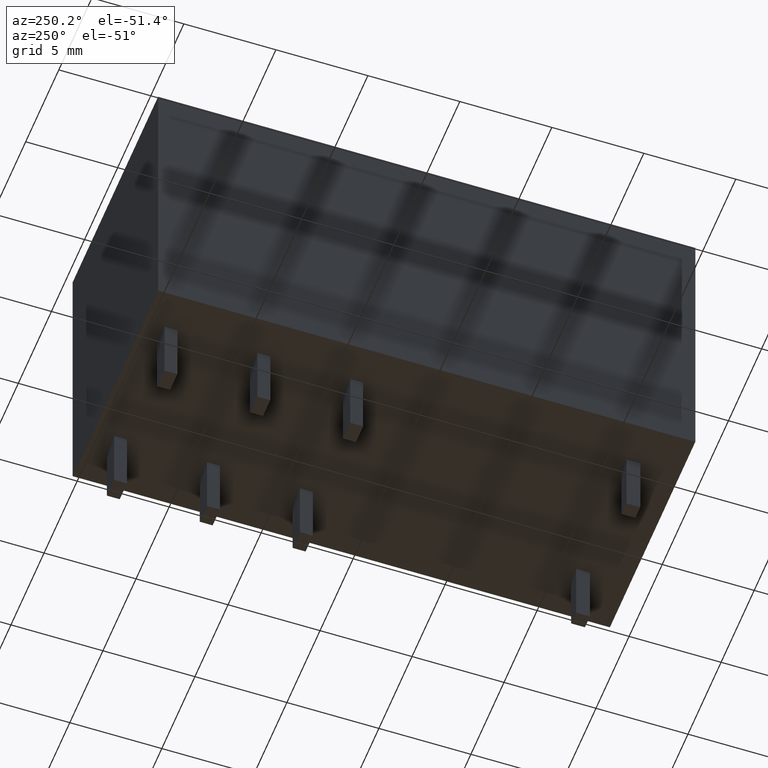
[diagram: clean part render]
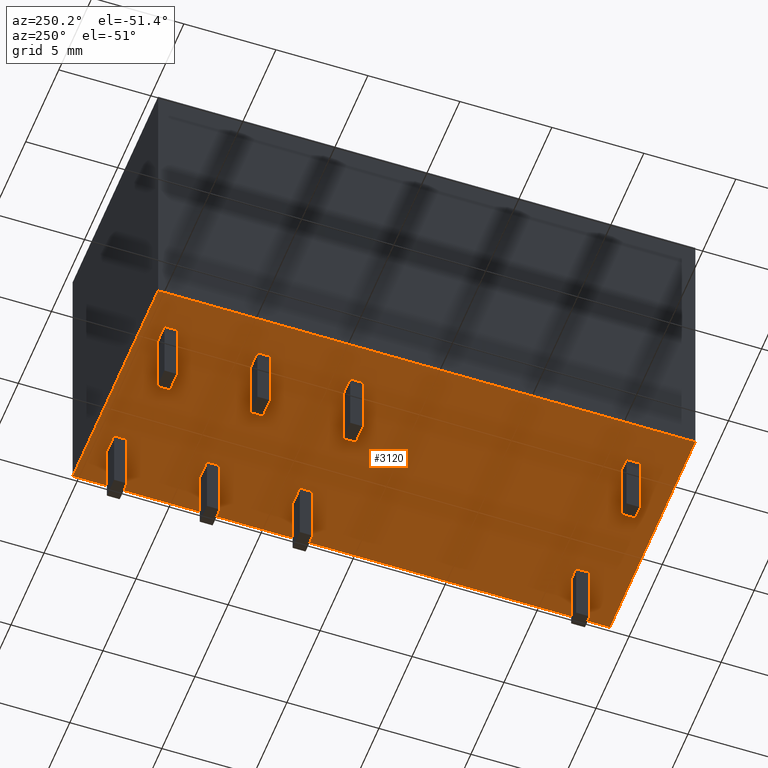
[diagram: same view with one face highlighted and labeled with its STEP entity id]
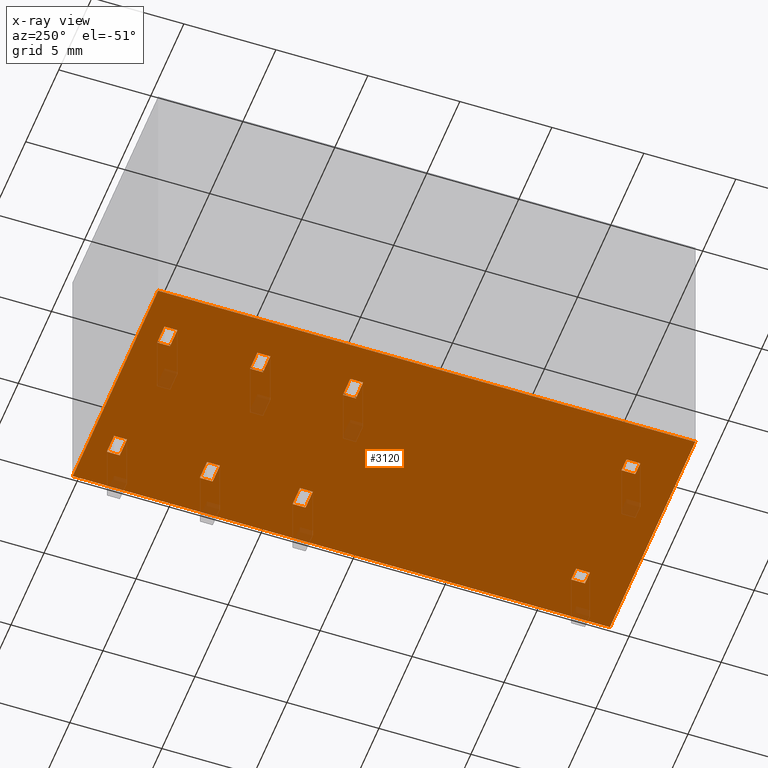
[diagram: x-ray of the same camera — body ghosted, the highlighted face saturated]
A machine part, auxiliary view. The second image highlights one B-rep face of the part: STEP entity #3120.
The next image is the same camera in x-ray: the body ghosted, the highlighted face saturated — about 2% of this face is hidden behind the body in this view.
In plain terms, the highlighted planar face has unit normal (0, -0, -1).
Its self-contained STEP definition (entity closure, byte-faithful):
#10=CARTESIAN_POINT('',(0.,0.,0.));
#20=DIRECTION('',(0.,0.,1.));
#30=DIRECTION('',(1.,0.,0.));
#40=AXIS2_PLACEMENT_3D('',#10,#20,#30);
#50=PLANE('',#40);
#60=CARTESIAN_POINT('',(0.,-6.3,0.));
#70=DIRECTION('',(0.,1.,0.));
#80=VECTOR('',#70,1.);
#90=LINE('',#60,#80);
#100=CARTESIAN_POINT('',(0.,-6.45,0.));
#110=VERTEX_POINT('',#100);
#120=CARTESIAN_POINT('',(0.,6.45,0.));
#130=VERTEX_POINT('',#120);
#140=EDGE_CURVE('',#110,#130,#90,.T.);
#150=ORIENTED_EDGE('',*,*,#140,.F.);
#160=CARTESIAN_POINT('',(0.,6.45,0.));
#170=DIRECTION('',(1.,0.,0.));
#180=VECTOR('',#170,1.);
#190=LINE('',#160,#180);
#200=CARTESIAN_POINT('',(29.2,6.45,0.));
#210=VERTEX_POINT('',#200);
#220=EDGE_CURVE('',#130,#210,#190,.T.);
#230=ORIENTED_EDGE('',*,*,#220,.F.);
#240=CARTESIAN_POINT('',(29.2,6.3,0.));
#250=DIRECTION('',(0.,-1.,0.));
#260=VECTOR('',#250,1.);
#270=LINE('',#240,#260);
#280=CARTESIAN_POINT('',(29.2,-6.45,0.));
#290=VERTEX_POINT('',#280);
#300=EDGE_CURVE('',#210,#290,#270,.T.);
#310=ORIENTED_EDGE('',*,*,#300,.F.);
#320=CARTESIAN_POINT('',(28.8,-6.45,0.));
#330=DIRECTION('',(-1.,0.,0.));
#340=VECTOR('',#330,1.);
#350=LINE('',#320,#340);
#360=EDGE_CURVE('',#290,#110,#350,.T.);
#370=ORIENTED_EDGE('',*,*,#360,.F.);
#380=EDGE_LOOP('',(#370,#310,#230,#150));
#390=FACE_OUTER_BOUND('',#380,.T.);
#400=CARTESIAN_POINT('',(18.,0.,0.));
#410=DIRECTION('',(0.,1.,0.));
#420=VECTOR('',#410,1.);
#430=LINE('',#400,#420);
#440=CARTESIAN_POINT('',(18.,3.25,0.));
#450=VERTEX_POINT('',#440);
#460=CARTESIAN_POINT('',(18.,4.35,0.));
#470=VERTEX_POINT('',#460);
#480=EDGE_CURVE('',#450,#470,#430,.T.);
#490=ORIENTED_EDGE('',*,*,#480,.F.);
#500=CARTESIAN_POINT('',(0.,4.35,0.));
#510=DIRECTION('',(-1.,0.,0.));
#520=VECTOR('',#510,1.);
#530=LINE('',#500,#520);
#540=CARTESIAN_POINT('',(17.3,4.35,0.));
#550=VERTEX_POINT('',#540);
#560=EDGE_CURVE('',#470,#550,#530,.T.);
#570=ORIENTED_EDGE('',*,*,#560,.F.);
#580=CARTESIAN_POINT('',(17.3,0.,0.));
#590=DIRECTION('',(0.,-1.,0.));
#600=VECTOR('',#590,1.);
#610=LINE('',#580,#600);
#620=CARTESIAN_POINT('',(17.3,3.25,0.));
#630=VERTEX_POINT('',#620);
#640=EDGE_CURVE('',#550,#630,#610,.T.);
#650=ORIENTED_EDGE('',*,*,#640,.F.);
#660=CARTESIAN_POINT('',(0.,3.25,0.));
#670=DIRECTION('',(1.,0.,0.));
#680=VECTOR('',#670,1.);
#690=LINE('',#660,#680);
#700=EDGE_CURVE('',#630,#450,#690,.T.);
#710=ORIENTED_EDGE('',*,*,#700,.F.);
#720=EDGE_LOOP('',(#710,#650,#570,#490));
#730=FACE_BOUND('',#720,.T.);
#740=CARTESIAN_POINT('',(27.4,0.,0.));
#750=DIRECTION('',(0.,-1.,0.));
#760=VECTOR('',#750,1.);
#770=LINE('',#740,#760);
#780=CARTESIAN_POINT('',(27.4,4.35,0.));
#790=VERTEX_POINT('',#780);
#800=CARTESIAN_POINT('',(27.4,3.25,0.));
#810=VERTEX_POINT('',#800);
#820=EDGE_CURVE('',#790,#810,#770,.T.);
#830=ORIENTED_EDGE('',*,*,#820,.F.);
#840=CARTESIAN_POINT('',(0.,3.25,0.));
#850=DIRECTION('',(1.,0.,0.));
#860=VECTOR('',#850,1.);
#870=LINE('',#840,#860);
#880=CARTESIAN_POINT('',(28.1,3.25,0.));
#890=VERTEX_POINT('',#880);
#900=EDGE_CURVE('',#810,#890,#870,.T.);
#910=ORIENTED_EDGE('',*,*,#900,.F.);
#920=CARTESIAN_POINT('',(28.1,0.,0.));
#930=DIRECTION('',(0.,1.,0.));
#940=VECTOR('',#930,1.);
#950=LINE('',#920,#940);
#960=CARTESIAN_POINT('',(28.1,4.35,0.));
#970=VERTEX_POINT('',#960);
#980=EDGE_CURVE('',#890,#970,#950,.T.);
#990=ORIENTED_EDGE('',*,*,#980,.F.);
#1000=CARTESIAN_POINT('',(0.,4.35,0.));
#1010=DIRECTION('',(-1.,0.,0.));
#1020=VECTOR('',#1010,1.);
#1030=LINE('',#1000,#1020);
#1040=EDGE_CURVE('',#970,#790,#1030,.T.);
#1050=ORIENTED_EDGE('',*,*,#1040,.F.);
#1060=EDGE_LOOP('',(#1050,#990,#910,#830));
#1070=FACE_BOUND('',#1060,.T.);
#1080=CARTESIAN_POINT('',(0.,3.25,0.));
#1090=DIRECTION('',(1.,0.,0.));
#1100=VECTOR('',#1090,1.);
#1110=LINE('',#1080,#1100);
#1120=CARTESIAN_POINT('',(22.35,3.25,0.));
#1130=VERTEX_POINT('',#1120);
#1140=CARTESIAN_POINT('',(23.05,3.25,0.));
#1150=VERTEX_POINT('',#1140);
#1160=EDGE_CURVE('',#1130,#1150,#1110,.T.);
#1170=ORIENTED_EDGE('',*,*,#1160,.F.);
#1180=CARTESIAN_POINT('',(23.05,0.,0.));
#1190=DIRECTION('',(0.,1.,0.));
#1200=VECTOR('',#1190,1.);
#1210=LINE('',#1180,#1200);
#1220=CARTESIAN_POINT('',(23.05,4.35,0.));
#1230=VERTEX_POINT('',#1220);
#1240=EDGE_CURVE('',#1150,#1230,#1210,.T.);
#1250=ORIENTED_EDGE('',*,*,#1240,.F.);
#1260=CARTESIAN_POINT('',(0.,4.35,0.));
#1270=DIRECTION('',(-1.,0.,0.));
#1280=VECTOR('',#1270,1.);
#1290=LINE('',#1260,#1280);
#1300=CARTESIAN_POINT('',(22.35,4.35,0.));
#1310=VERTEX_POINT('',#1300);
#1320=EDGE_CURVE('',#1230,#1310,#1290,.T.);
#1330=ORIENTED_EDGE('',*,*,#1320,.F.);
#1340=CARTESIAN_POINT('',(22.35,0.,0.));
#1350=DIRECTION('',(0.,-1.,0.));
#1360=VECTOR('',#1350,1.);
#1370=LINE('',#1340,#1360);
#1380=EDGE_CURVE('',#1310,#1130,#1370,.T.);
#1390=ORIENTED_EDGE('',*,*,#1380,.F.);
#1400=EDGE_LOOP('',(#1390,#1330,#1250,#1170));
#1410=FACE_BOUND('',#1400,.T.);
#1420=CARTESIAN_POINT('',(23.05,0.,0.));
#1430=DIRECTION('',(0.,1.,0.));
#1440=VECTOR('',#1430,1.);
#1450=LINE('',#1420,#1440);
#1460=CARTESIAN_POINT('',(23.05,-4.35,0.));
#1470=VERTEX_POINT('',#1460);
#1480=CARTESIAN_POINT('',(23.05,-3.25,0.));
#1490=VERTEX_POINT('',#1480);
#1500=EDGE_CURVE('',#1470,#1490,#1450,.T.);
#1510=ORIENTED_EDGE('',*,*,#1500,.F.);
#1520=CARTESIAN_POINT('',(0.,-3.25,0.));
#1530=DIRECTION('',(-1.,0.,0.));
#1540=VECTOR('',#1530,1.);
#1550=LINE('',#1520,#1540);
#1560=CARTESIAN_POINT('',(22.35,-3.25,0.));
#1570=VERTEX_POINT('',#1560);
#1580=EDGE_CURVE('',#1490,#1570,#1550,.T.);
#1590=ORIENTED_EDGE('',*,*,#1580,.F.);
#1600=CARTESIAN_POINT('',(22.35,0.,0.));
#1610=DIRECTION('',(0.,-1.,0.));
#1620=VECTOR('',#1610,1.);
#1630=LINE('',#1600,#1620);
#1640=CARTESIAN_POINT('',(22.35,-4.35,0.));
#1650=VERTEX_POINT('',#1640);
#1660=EDGE_CURVE('',#1570,#1650,#1630,.T.);
#1670=ORIENTED_EDGE('',*,*,#1660,.F.);
#1680=CARTESIAN_POINT('',(0.,-4.35,0.));
#1690=DIRECTION('',(1.,0.,0.));
#1700=VECTOR('',#1690,1.);
#1710=LINE('',#1680,#1700);
#1720=EDGE_CURVE('',#1650,#1470,#1710,.T.);
#1730=ORIENTED_EDGE('',*,*,#1720,.F.);
#1740=EDGE_LOOP('',(#1730,#1670,#1590,#1510));
#1750=FACE_BOUND('',#1740,.T.);
#1760=CARTESIAN_POINT('',(0.,-3.25,0.));
#1770=DIRECTION('',(-1.,0.,0.));
#1780=VECTOR('',#1770,1.);
#1790=LINE('',#1760,#1780);
#1800=CARTESIAN_POINT('',(18.,-3.25,0.));
#1810=VERTEX_POINT('',#1800);
#1820=CARTESIAN_POINT('',(17.3,-3.25,0.));
#1830=VERTEX_POINT('',#1820);
#1840=EDGE_CURVE('',#1810,#1830,#1790,.T.);
#1850=ORIENTED_EDGE('',*,*,#1840,.F.);
#1860=CARTESIAN_POINT('',(17.3,0.,0.));
#1870=DIRECTION('',(0.,-1.,0.));
#1880=VECTOR('',#1870,1.);
#1890=LINE('',#1860,#1880);
#1900=CARTESIAN_POINT('',(17.3,-4.35,0.));
#1910=VERTEX_POINT('',#1900);
#1920=EDGE_CURVE('',#1830,#1910,#1890,.T.);
#1930=ORIENTED_EDGE('',*,*,#1920,.F.);
#1940=CARTESIAN_POINT('',(0.,-4.35,0.));
#1950=DIRECTION('',(1.,0.,0.));
#1960=VECTOR('',#1950,1.);
#1970=LINE('',#1940,#1960);
#1980=CARTESIAN_POINT('',(18.,-4.35,0.));
#1990=VERTEX_POINT('',#1980);
#2000=EDGE_CURVE('',#1910,#1990,#1970,.T.);
#2010=ORIENTED_EDGE('',*,*,#2000,.F.);
#2020=CARTESIAN_POINT('',(18.,0.,0.));
#2030=DIRECTION('',(0.,1.,0.));
#2040=VECTOR('',#2030,1.);
#2050=LINE('',#2020,#2040);
#2060=EDGE_CURVE('',#1990,#1810,#2050,.T.);
#2070=ORIENTED_EDGE('',*,*,#2060,.F.);
#2080=EDGE_LOOP('',(#2070,#2010,#1930,#1850));
#2090=FACE_BOUND('',#2080,.T.);
#2100=CARTESIAN_POINT('',(0.,-3.25,0.));
#2110=DIRECTION('',(-1.,0.,0.));
#2120=VECTOR('',#2110,1.);
#2130=LINE('',#2100,#2120);
#2140=CARTESIAN_POINT('',(28.1,-3.25,0.));
#2150=VERTEX_POINT('',#2140);
#2160=CARTESIAN_POINT('',(27.4,-3.25,0.));
#2170=VERTEX_POINT('',#2160);
#2180=EDGE_CURVE('',#2150,#2170,#2130,.T.);
#2190=ORIENTED_EDGE('',*,*,#2180,.F.);
#2200=CARTESIAN_POINT('',(27.4,0.,0.));
#2210=DIRECTION('',(0.,-1.,0.));
#2220=VECTOR('',#2210,1.);
#2230=LINE('',#2200,#2220);
#2240=CARTESIAN_POINT('',(27.4,-4.35,0.));
#2250=VERTEX_POINT('',#2240);
#2260=EDGE_CURVE('',#2170,#2250,#2230,.T.);
#2270=ORIENTED_EDGE('',*,*,#2260,.F.);
#2280=CARTESIAN_POINT('',(0.,-4.35,0.));
#2290=DIRECTION('',(1.,0.,0.));
#2300=VECTOR('',#2290,1.);
#2310=LINE('',#2280,#2300);
#2320=CARTESIAN_POINT('',(28.1,-4.35,0.));
#2330=VERTEX_POINT('',#2320);
#2340=EDGE_CURVE('',#2250,#2330,#2310,.T.);
#2350=ORIENTED_EDGE('',*,*,#2340,.F.);
#2360=CARTESIAN_POINT('',(28.1,0.,0.));
#2370=DIRECTION('',(0.,1.,0.));
#2380=VECTOR('',#2370,1.);
#2390=LINE('',#2360,#2380);
#2400=EDGE_CURVE('',#2330,#2150,#2390,.T.);
#2410=ORIENTED_EDGE('',*,*,#2400,.F.);
#2420=EDGE_LOOP('',(#2410,#2350,#2270,#2190));
#2430=FACE_BOUND('',#2420,.T.);
#2440=CARTESIAN_POINT('',(2.175,0.,0.));
#2450=DIRECTION('',(0.,-1.,0.));
#2460=VECTOR('',#2450,1.);
#2470=LINE('',#2440,#2460);
#2480=CARTESIAN_POINT('',(2.175,-3.425,0.));
#2490=VERTEX_POINT('',#2480);
#2500=CARTESIAN_POINT('',(2.175,-4.175,0.));
#2510=VERTEX_POINT('',#2500);
#2520=EDGE_CURVE('',#2490,#2510,#2470,.T.);
#2530=ORIENTED_EDGE('',*,*,#2520,.F.);
#2540=CARTESIAN_POINT('',(0.,-4.175,0.));
#2550=DIRECTION('',(1.,0.,0.));
#2560=VECTOR('',#2550,1.);
#2570=LINE('',#2540,#2560);
#2580=CARTESIAN_POINT('',(2.925,-4.175,0.));
#2590=VERTEX_POINT('',#2580);
#2600=EDGE_CURVE('',#2510,#2590,#2570,.T.);
#2610=ORIENTED_EDGE('',*,*,#2600,.F.);
#2620=CARTESIAN_POINT('',(2.925,0.,0.));
#2630=DIRECTION('',(0.,1.,0.));
#2640=VECTOR('',#2630,1.);
#2650=LINE('',#2620,#2640);
#2660=CARTESIAN_POINT('',(2.925,-3.425,0.));
#2670=VERTEX_POINT('',#2660);
#2680=EDGE_CURVE('',#2590,#2670,#2650,.T.);
#2690=ORIENTED_EDGE('',*,*,#2680,.F.);
#2700=CARTESIAN_POINT('',(0.,-3.425,0.));
#2710=DIRECTION('',(-1.,0.,0.));
#2720=VECTOR('',#2710,1.);
#2730=LINE('',#2700,#2720);
#2740=EDGE_CURVE('',#2670,#2490,#2730,.T.);
#2750=ORIENTED_EDGE('',*,*,#2740,.F.);
#2760=EDGE_LOOP('',(#2750,#2690,#2610,#2530));
#2770=FACE_BOUND('',#2760,.T.);
#2780=CARTESIAN_POINT('',(2.925,0.,0.));
#2790=DIRECTION('',(0.,1.,0.));
#2800=VECTOR('',#2790,1.);
#2810=LINE('',#2780,#2800);
#2820=CARTESIAN_POINT('',(2.925,3.425,0.));
#2830=VERTEX_POINT('',#2820);
#2840=CARTESIAN_POINT('',(2.925,4.175,0.));
#2850=VERTEX_POINT('',#2840);
#2860=EDGE_CURVE('',#2830,#2850,#2810,.T.);
#2870=ORIENTED_EDGE('',*,*,#2860,.F.);
#2880=CARTESIAN_POINT('',(0.,4.175,0.));
#2890=DIRECTION('',(-1.,0.,0.));
#2900=VECTOR('',#2890,1.);
#2910=LINE('',#2880,#2900);
#2920=CARTESIAN_POINT('',(2.175,4.175,0.));
#2930=VERTEX_POINT('',#2920);
#2940=EDGE_CURVE('',#2850,#2930,#2910,.T.);
#2950=ORIENTED_EDGE('',*,*,#2940,.F.);
#2960=CARTESIAN_POINT('',(2.175,0.,0.));
#2970=DIRECTION('',(0.,-1.,0.));
#2980=VECTOR('',#2970,1.);
#2990=LINE('',#2960,#2980);
#3000=CARTESIAN_POINT('',(2.175,3.425,0.));
#3010=VERTEX_POINT('',#3000);
#3020=EDGE_CURVE('',#2930,#3010,#2990,.T.);
#3030=ORIENTED_EDGE('',*,*,#3020,.F.);
#3040=CARTESIAN_POINT('',(0.,3.425,0.));
#3050=DIRECTION('',(1.,0.,0.));
#3060=VECTOR('',#3050,1.);
#3070=LINE('',#3040,#3060);
#3080=EDGE_CURVE('',#3010,#2830,#3070,.T.);
#3090=ORIENTED_EDGE('',*,*,#3080,.F.);
#3100=EDGE_LOOP('',(#3090,#3030,#2950,#2870));
#3110=FACE_BOUND('',#3100,.T.);
#3120=ADVANCED_FACE('',(#390,#730,#1070,#1410,#1750,#2090,#2430,#2770,
#3110),#50,.T.);